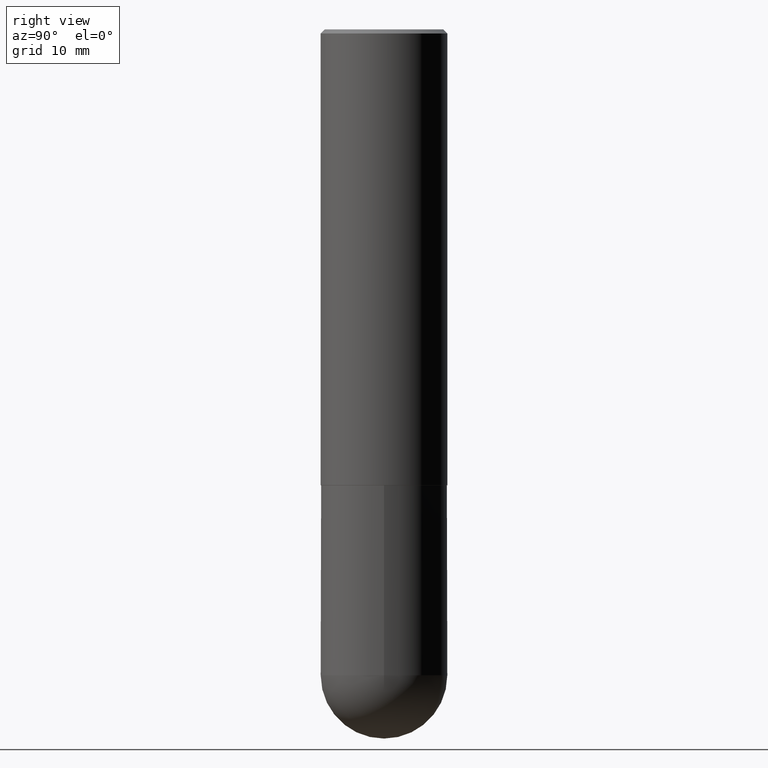
[diagram: clean part render]
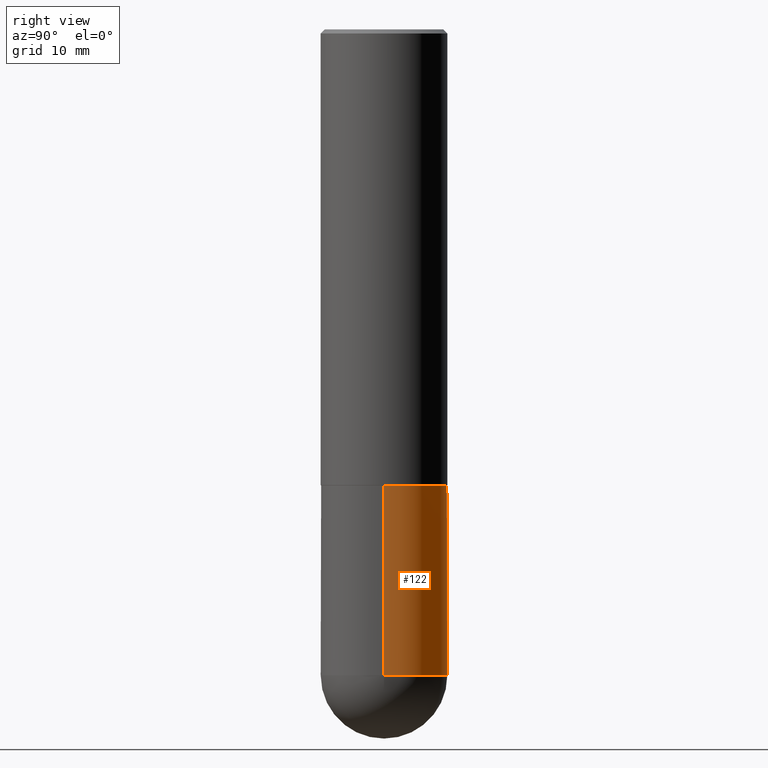
[diagram: same view with one face highlighted and labeled with its STEP entity id]
A machine part, right view. The second image highlights one B-rep face of the part: STEP entity #122.
In plain terms, the highlighted cylindrical surface (partial cylindrical patch) has radius 7.9375 mm, axis along (-0, 0, 1).
Its self-contained STEP definition (entity closure, byte-faithful):
#4 = AXIS2_PLACEMENT_3D ( 'NONE', #106, #135, #43 ) ;
#17 = CARTESIAN_POINT ( 'NONE',  ( 5.502304813916556222E-29, -7.855833012397076871E-15, -2.249999999999999556 ) ) ;
#18 = ORIENTED_EDGE ( 'NONE', *, *, #184, .F. ) ;
#24 = DIRECTION ( 'NONE',  ( -2.445468806185136877E-29, 3.491481338843145188E-15, 1.000000000000000000 ) ) ;
#26 = DIRECTION ( 'NONE',  ( -2.445468806185136597E-29, 3.491481338843145583E-15, 1.000000000000000000 ) ) ;
#43 = DIRECTION ( 'NONE',  ( 1.000000000000000000, -6.982962677686269077E-15, 0.000000000000000000 ) ) ;
#45 = EDGE_CURVE ( 'NONE', #286, #358, #333, .T. ) ;
#49 = DIRECTION ( 'NONE',  ( 1.000000000000000000, -6.982962677686269077E-15, 0.000000000000000000 ) ) ;
#50 = CARTESIAN_POINT ( 'NONE',  ( 2.182175836777035261E-15, 0.3124999999999887867, -3.187500000000000888 ) ) ;
#53 = AXIS2_PLACEMENT_3D ( 'NONE', #17, #26, #130 ) ;
#73 = CIRCLE ( 'NONE', #53, 0.3125000000000000000 ) ;
#76 = AXIS2_PLACEMENT_3D ( 'NONE', #330, #211, #49 ) ;
#79 = DIRECTION ( 'NONE',  ( -2.445468806185136877E-29, 3.491481338843145188E-15, 1.000000000000000000 ) ) ;
#106 = CARTESIAN_POINT ( 'NONE',  ( 7.794931819715121781E-29, -1.112909676756252622E-14, -3.187500000000000000 ) ) ;
#122 = ADVANCED_FACE ( 'NONE', ( #163 ), #291, .T. ) ;
#124 = EDGE_LOOP ( 'NONE', ( #272, #370, #18, #158, #388 ) ) ;
#129 = LINE ( 'NONE', #233, #408 ) ;
#130 = DIRECTION ( 'NONE',  ( 1.000000000000000000, -6.982962677686269077E-15, 0.000000000000000000 ) ) ;
#132 = CARTESIAN_POINT ( 'NONE',  ( -0.3125000000000000000, -7.272018840729490833E-15, -3.187500000000000000 ) ) ;
#135 = DIRECTION ( 'NONE',  ( -2.445468806185136597E-29, 3.491481338843145583E-15, 1.000000000000000000 ) ) ;
#147 = EDGE_CURVE ( 'NONE', #289, #314, #399, .T. ) ;
#158 = ORIENTED_EDGE ( 'NONE', *, *, #342, .F. ) ;
#161 = CIRCLE ( 'NONE', #4, 0.3125000000000000000 ) ;
#163 = FACE_OUTER_BOUND ( 'NONE', #124, .T. ) ;
#173 = EDGE_CURVE ( 'NONE', #358, #289, #161, .T. ) ;
#184 = EDGE_CURVE ( 'NONE', #229, #314, #73, .T. ) ;
#197 = VECTOR ( 'NONE', #24, 39.37007874015748143 ) ;
#211 = DIRECTION ( 'NONE',  ( -2.445468806185136597E-29, 3.491481338843145583E-15, 1.000000000000000000 ) ) ;
#229 = VERTEX_POINT ( 'NONE', #268 ) ;
#233 = CARTESIAN_POINT ( 'NONE',  ( 0.3125000000000000000, -2.182175836776958347E-15, 1.523805242436230075E-29 ) ) ;
#236 = CARTESIAN_POINT ( 'NONE',  ( -0.3125000000000000000, 2.220446049250313081E-15, -1.537167215704658232E-29 ) ) ;
#268 = CARTESIAN_POINT ( 'NONE',  ( 0.3125000000000000000, -1.003800884917403522E-14, -2.249999999999999556 ) ) ;
#272 = ORIENTED_EDGE ( 'NONE', *, *, #173, .T. ) ;
#286 = VERTEX_POINT ( 'NONE', #384 ) ;
#289 = VERTEX_POINT ( 'NONE', #132 ) ;
#291 = CYLINDRICAL_SURFACE ( 'NONE', #346, 0.3125000000000000000 ) ;
#292 = CARTESIAN_POINT ( 'NONE',  ( -0.3125000000000000000, -7.272018840729487678E-15, -2.249999999999999556 ) ) ;
#293 = DIRECTION ( 'NONE',  ( -2.445468806185136597E-29, 3.491481338843145583E-15, 1.000000000000000000 ) ) ;
#314 = VERTEX_POINT ( 'NONE', #292 ) ;
#324 = CARTESIAN_POINT ( 'NONE',  ( 0.000000000000000000, 0.000000000000000000, 0.000000000000000000 ) ) ;
#330 = CARTESIAN_POINT ( 'NONE',  ( 7.794931819715121781E-29, -1.112909676756252622E-14, -3.187500000000000000 ) ) ;
#333 = CIRCLE ( 'NONE', #76, 0.3125000000000000000 ) ;
#342 = EDGE_CURVE ( 'NONE', #286, #229, #129, .T. ) ;
#346 = AXIS2_PLACEMENT_3D ( 'NONE', #324, #293, #390 ) ;
#358 = VERTEX_POINT ( 'NONE', #50 ) ;
#370 = ORIENTED_EDGE ( 'NONE', *, *, #147, .T. ) ;
#384 = CARTESIAN_POINT ( 'NONE',  ( 0.3125000000000000000, -1.167464072675676384E-14, -3.187500000000000000 ) ) ;
#388 = ORIENTED_EDGE ( 'NONE', *, *, #45, .T. ) ;
#390 = DIRECTION ( 'NONE',  ( 1.000000000000000000, -6.982962677686266711E-15, 4.876176775795936353E-29 ) ) ;
#399 = LINE ( 'NONE', #236, #197 ) ;
#408 = VECTOR ( 'NONE', #79, 39.37007874015748143 ) ;